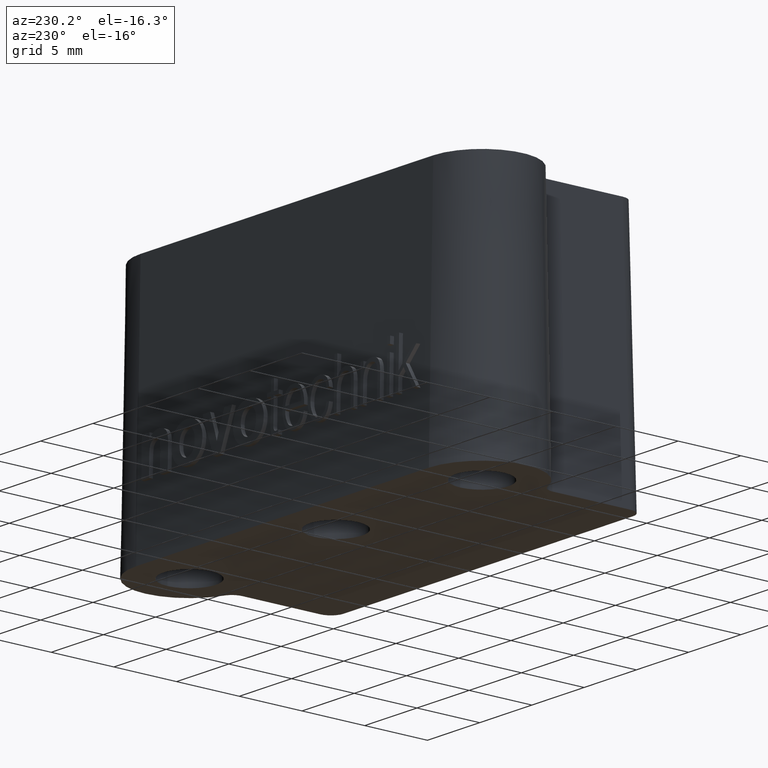
[diagram: clean part render]
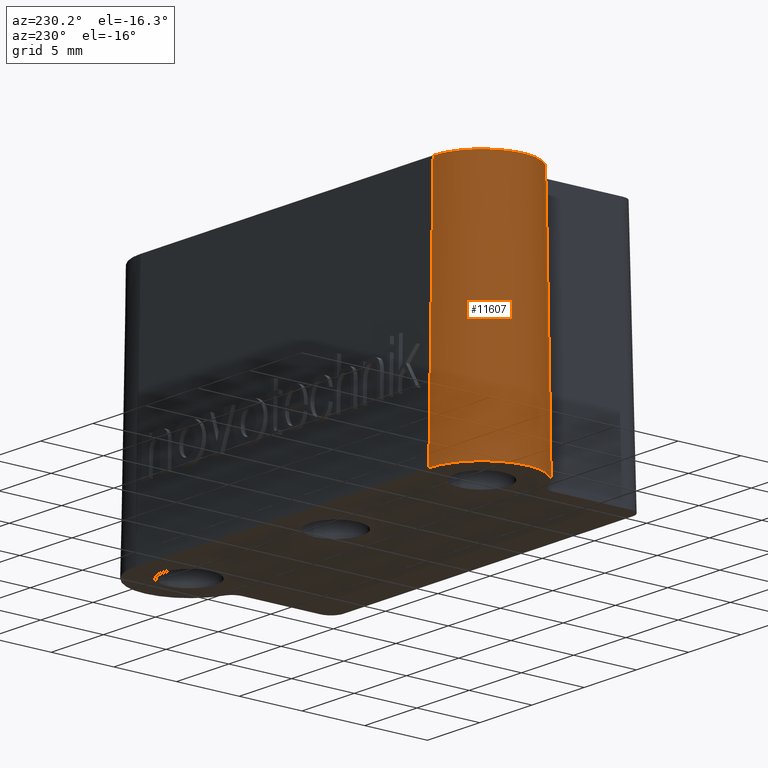
[diagram: same view with one face highlighted and labeled with its STEP entity id]
A machine part, auxiliary view. The second image highlights one B-rep face of the part: STEP entity #11607.
In plain terms, the highlighted conical surface has half-angle 1 deg.
Its self-contained STEP definition (entity closure, byte-faithful):
#3930 = EDGE_CURVE ( 'NONE', #6322, #6704, #32606, .T. ) ;
#6322 = VERTEX_POINT ( 'NONE', #23701 ) ;
#6448 = VERTEX_POINT ( 'NONE', #23852 ) ;
#6704 = VERTEX_POINT ( 'NONE', #22211 ) ;
#6763 = VERTEX_POINT ( 'NONE', #22007 ) ;
#11305 = CARTESIAN_POINT ( 'NONE',  ( -14.00000000000000000, 32.29999999999999700, 20.00000000000000000 ) ) ;
#11306 = DIRECTION ( 'NONE',  ( 0.0000000000000000000, 0.0000000000000000000, 1.000000000000000000 ) ) ;
#11307 = DIRECTION ( 'NONE',  ( 1.000000000000000000, 0.0000000000000000000, 0.0000000000000000000 ) ) ;
#11377 = CARTESIAN_POINT ( 'NONE',  ( -14.00000000000000000, 32.29999999999999700, 0.0000000000000000000 ) ) ;
#11378 = DIRECTION ( 'NONE',  ( 0.0000000000000000000, 0.0000000000000000000, 1.000000000000000000 ) ) ;
#11379 = DIRECTION ( 'NONE',  ( 1.000000000000000000, 0.0000000000000000000, 0.0000000000000000000 ) ) ;
#11607 = ADVANCED_FACE ( 'NONE', ( #30837 ), #18962, .T. ) ;
#12207 = CIRCLE ( 'NONE', #12243, 4.250000000000003600 ) ;
#12222 = AXIS2_PLACEMENT_3D ( 'NONE', #11305, #11306, #11307 ) ;
#12224 = CIRCLE ( 'NONE', #12222, 3.900898701435650700 ) ;
#12243 = AXIS2_PLACEMENT_3D ( 'NONE', #11377, #11378, #11379 ) ;
#15051 = EDGE_LOOP ( 'NONE', ( #17906, #17905, #17904, #17903 ) ) ;
#15237 = EDGE_CURVE ( 'NONE', #6322, #6763, #12224, .T. ) ;
#15281 = EDGE_CURVE ( 'NONE', #6704, #6448, #12207, .T. ) ;
#15330 = EDGE_CURVE ( 'NONE', #6448, #6763, #16586, .T. ) ;
#15978 = CARTESIAN_POINT ( 'NONE',  ( -15.48661268969349600, 28.33089829716347600, 0.6665332602125990700 ) ) ;
#15984 = CARTESIAN_POINT ( 'NONE',  ( -15.49681165618635600, 28.32230533274552200, 0.0000000000000000000 ) ) ;
#15989 = CARTESIAN_POINT ( 'NONE',  ( -15.47642326762997900, 28.33951087752268400, 1.333066413946875300 ) ) ;
#15990 = CARTESIAN_POINT ( 'NONE',  ( -15.46624358291917800, 28.34814330873020400, 1.999599458945608500 ) ) ;
#15991 = CARTESIAN_POINT ( 'NONE',  ( -15.42552484372631300, 28.38267303385680400, 4.665731661835321700 ) ) ;
#15992 = CARTESIAN_POINT ( 'NONE',  ( -15.38496179072481600, 28.41752028239936600, 7.331862156286557100 ) ) ;
#15993 = CARTESIAN_POINT ( 'NONE',  ( -15.34456763464952500, 28.45270079837562000, 9.997990788662523400 ) ) ;
#15994 = CARTESIAN_POINT ( 'NONE',  ( -15.29405455846947600, 28.49669419386208000, 13.33199678849078400 ) ) ;
#15995 = CARTESIAN_POINT ( 'NONE',  ( -15.24380544943957500, 28.54120863227490500, 16.66599997121918600 ) ) ;
#15996 = CARTESIAN_POINT ( 'NONE',  ( -15.19384955941719700, 28.58627762099241900, 20.00000000000000000 ) ) ;
#16586 = B_SPLINE_CURVE_WITH_KNOTS ( 'NONE', 3,
 ( #15984, #15978, #15989, #15990, #15991, #15992, #15993, #15994, #15995, #15996 ),
 .UNSPECIFIED., .F., .F.,
 ( 4, 3, 3, 4 ),
 ( 1.409134609995107000E-020, 0.002000000001080455600, 0.01000000014275953400, 0.02000403682880507600 ),
 .UNSPECIFIED. ) ;
#17903 = ORIENTED_EDGE ( 'NONE', *, *, #3930, .T. ) ;
#17904 = ORIENTED_EDGE ( 'NONE', *, *, #15237, .F. ) ;
#17905 = ORIENTED_EDGE ( 'NONE', *, *, #15330, .T. ) ;
#17906 = ORIENTED_EDGE ( 'NONE', *, *, #15281, .T. ) ;
#18961 = AXIS2_PLACEMENT_3D ( 'NONE', #30836, #30831, #30833 ) ;
#18962 = CONICAL_SURFACE ( 'NONE', #18961, 4.250000000000003600, 0.01745329251994333400 ) ;
#22007 = CARTESIAN_POINT ( 'NONE',  ( -15.19384955941719700, 28.58627762099241900, 20.00000000000000000 ) ) ;
#22211 = CARTESIAN_POINT ( 'NONE',  ( -14.00000000000000000, 36.54999999999999700, 0.0000000000000000000 ) ) ;
#23701 = CARTESIAN_POINT ( 'NONE',  ( -14.00000000000000000, 36.20089870143564800, 20.00000000000000000 ) ) ;
#23852 = CARTESIAN_POINT ( 'NONE',  ( -15.49681165618635600, 28.32230533274552200, 0.0000000000000000000 ) ) ;
#30831 = DIRECTION ( 'NONE',  ( -0.0000000000000000000, -0.0000000000000000000, -1.000000000000000000 ) ) ;
#30833 = DIRECTION ( 'NONE',  ( 1.000000000000000000, 0.0000000000000000000, 0.0000000000000000000 ) ) ;
#30836 = CARTESIAN_POINT ( 'NONE',  ( -14.00000000000000000, 32.29999999999999700, 0.0000000000000000000 ) ) ;
#30837 = FACE_OUTER_BOUND ( 'NONE', #15051, .T. ) ;
#32069 = DIRECTION ( 'NONE',  ( -0.0000000000000000000, 0.01745240643728355000, -0.9998476951563911600 ) ) ;
#32470 = CARTESIAN_POINT ( 'NONE',  ( -14.00000000000000000, 36.54999999999999700, 0.0000000000000000000 ) ) ;
#32606 = LINE ( 'NONE', #32470, #34045 ) ;
#34045 = VECTOR ( 'NONE', #32069, 1000.000000000000200 ) ;